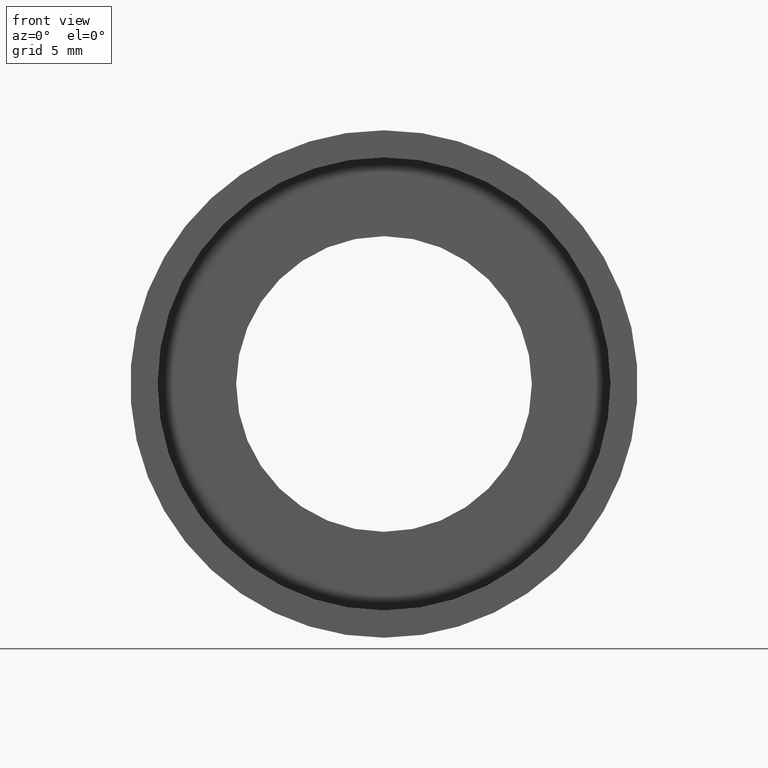
[diagram: clean part render]
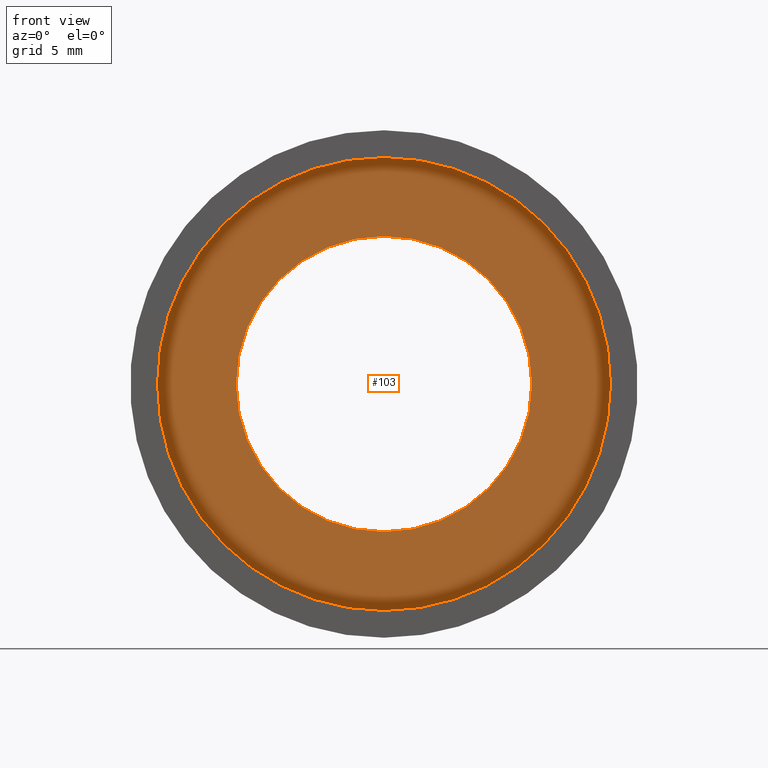
[diagram: same view with one face highlighted and labeled with its STEP entity id]
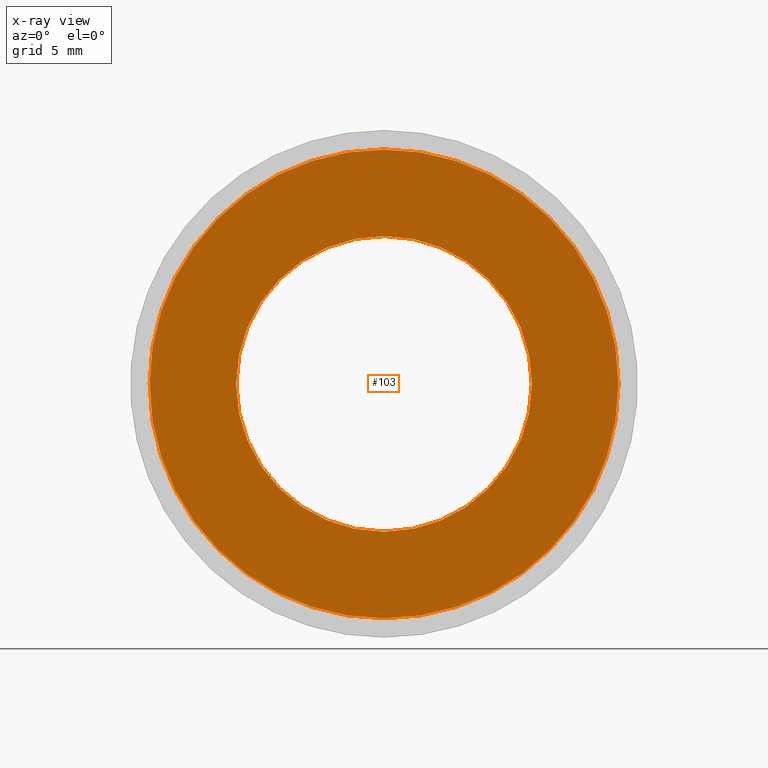
[diagram: x-ray of the same camera — body ghosted, the highlighted face saturated]
A machine part, front view. The second image highlights one B-rep face of the part: STEP entity #103.
The next image is the same camera in x-ray: the body ghosted, the highlighted face saturated — about 0% of this face is hidden behind the body in this view.
In plain terms, the highlighted planar face has unit normal (-0, 1, 0).
Its self-contained STEP definition (entity closure, byte-faithful):
#1 = FACE_OUTER_BOUND ( 'NONE', #420, .T. ) ;
#4 = CARTESIAN_POINT ( 'NONE',  ( 0.0000000000000000000, 5.499999999999998200, 0.0000000000000000000 ) ) ;
#9 = AXIS2_PLACEMENT_3D ( 'NONE', #241, #417, #194 ) ;
#12 = FACE_BOUND ( 'NONE', #68, .T. ) ;
#41 = AXIS2_PLACEMENT_3D ( 'NONE', #259, #74, #92 ) ;
#49 = CARTESIAN_POINT ( 'NONE',  ( 0.0000000000000000000, 5.499999999999998200, 17.60000000000001200 ) ) ;
#68 = EDGE_LOOP ( 'NONE', ( #146, #69 ) ) ;
#69 = ORIENTED_EDGE ( 'NONE', *, *, #394, .T. ) ;
#74 = DIRECTION ( 'NONE',  ( -0.0000000000000000000, 1.000000000000000000, -0.0000000000000000000 ) ) ;
#90 = DIRECTION ( 'NONE',  ( -0.0000000000000000000, 1.000000000000000000, 0.0000000000000000000 ) ) ;
#92 = DIRECTION ( 'NONE',  ( 0.0000000000000000000, 0.0000000000000000000, 1.000000000000000000 ) ) ;
#93 = VERTEX_POINT ( 'NONE', #372 ) ;
#103 = ADVANCED_FACE ( 'NONE', ( #1, #12 ), #218, .F. ) ;
#134 = CARTESIAN_POINT ( 'NONE',  ( 2.155378366499343200E-015, 5.499999999999998200, -17.60000000000001200 ) ) ;
#137 = CARTESIAN_POINT ( 'NONE',  ( 1.359357947053562700E-015, 5.499999999999998200, -11.10000000000000500 ) ) ;
#140 = EDGE_CURVE ( 'NONE', #141, #302, #273, .T. ) ;
#141 = VERTEX_POINT ( 'NONE', #134 ) ;
#146 = ORIENTED_EDGE ( 'NONE', *, *, #426, .T. ) ;
#154 = AXIS2_PLACEMENT_3D ( 'NONE', #4, #347, #204 ) ;
#167 = ORIENTED_EDGE ( 'NONE', *, *, #345, .F. ) ;
#194 = DIRECTION ( 'NONE',  ( 0.0000000000000000000, 0.0000000000000000000, 1.000000000000000000 ) ) ;
#204 = DIRECTION ( 'NONE',  ( 0.0000000000000000000, 0.0000000000000000000, 1.000000000000000000 ) ) ;
#205 = AXIS2_PLACEMENT_3D ( 'NONE', #422, #250, #296 ) ;
#218 = PLANE ( 'NONE',  #232 ) ;
#224 = CARTESIAN_POINT ( 'NONE',  ( 17.60000000000001200, 5.499999999999998200, 0.0000000000000000000 ) ) ;
#232 = AXIS2_PLACEMENT_3D ( 'NONE', #224, #90, #383 ) ;
#241 = CARTESIAN_POINT ( 'NONE',  ( 0.0000000000000000000, 5.499999999999998200, 0.0000000000000000000 ) ) ;
#250 = DIRECTION ( 'NONE',  ( -0.0000000000000000000, 1.000000000000000000, -0.0000000000000000000 ) ) ;
#259 = CARTESIAN_POINT ( 'NONE',  ( 0.0000000000000000000, 5.499999999999998200, 0.0000000000000000000 ) ) ;
#273 = CIRCLE ( 'NONE', #154, 17.60000000000001200 ) ;
#290 = VERTEX_POINT ( 'NONE', #137 ) ;
#296 = DIRECTION ( 'NONE',  ( 0.0000000000000000000, 0.0000000000000000000, 1.000000000000000000 ) ) ;
#302 = VERTEX_POINT ( 'NONE', #49 ) ;
#320 = CIRCLE ( 'NONE', #205, 17.60000000000001200 ) ;
#345 = EDGE_CURVE ( 'NONE', #302, #141, #320, .T. ) ;
#347 = DIRECTION ( 'NONE',  ( -0.0000000000000000000, 1.000000000000000000, -0.0000000000000000000 ) ) ;
#372 = CARTESIAN_POINT ( 'NONE',  ( 0.0000000000000000000, 5.499999999999998200, 11.10000000000000500 ) ) ;
#378 = ORIENTED_EDGE ( 'NONE', *, *, #140, .F. ) ;
#379 = CIRCLE ( 'NONE', #41, 11.10000000000000500 ) ;
#383 = DIRECTION ( 'NONE',  ( 0.0000000000000000000, 0.0000000000000000000, 1.000000000000000000 ) ) ;
#394 = EDGE_CURVE ( 'NONE', #290, #93, #379, .T. ) ;
#417 = DIRECTION ( 'NONE',  ( -0.0000000000000000000, 1.000000000000000000, -0.0000000000000000000 ) ) ;
#420 = EDGE_LOOP ( 'NONE', ( #167, #378 ) ) ;
#422 = CARTESIAN_POINT ( 'NONE',  ( 0.0000000000000000000, 5.499999999999998200, 0.0000000000000000000 ) ) ;
#426 = EDGE_CURVE ( 'NONE', #93, #290, #430, .T. ) ;
#430 = CIRCLE ( 'NONE', #9, 11.10000000000000500 ) ;